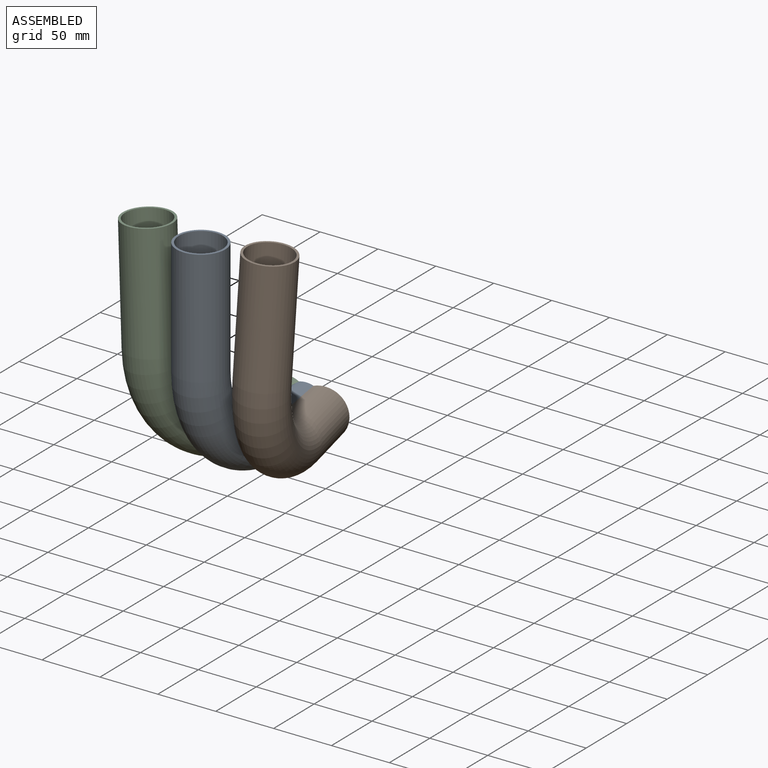
[diagram: assembled view]
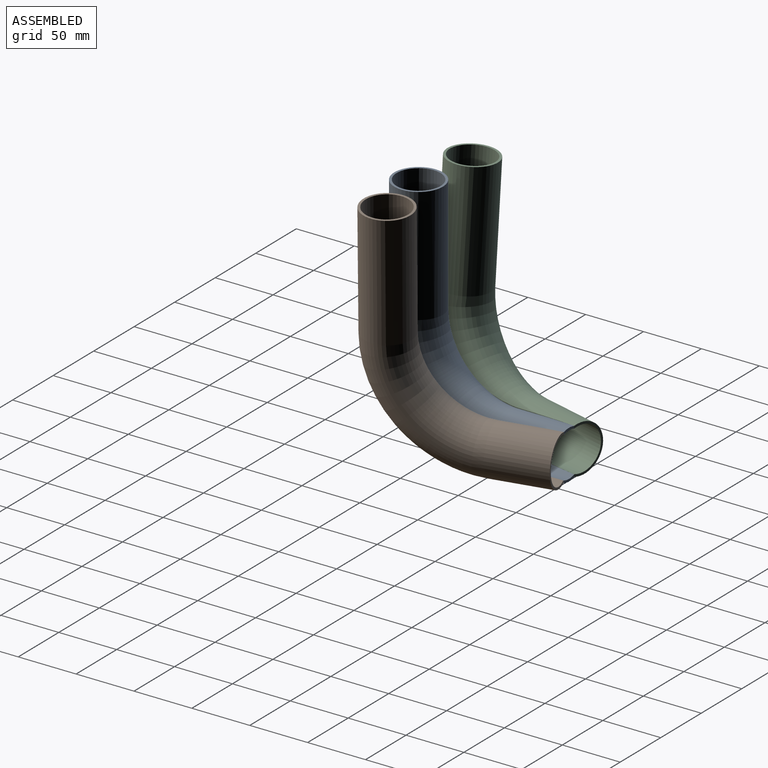
[diagram: assembled view, second angle]
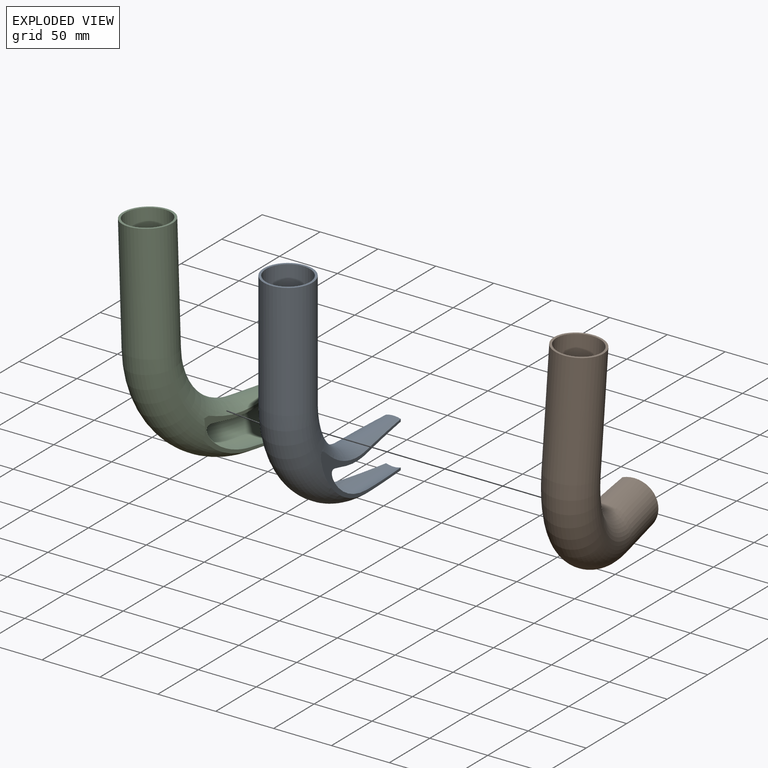
[diagram: exploded view]
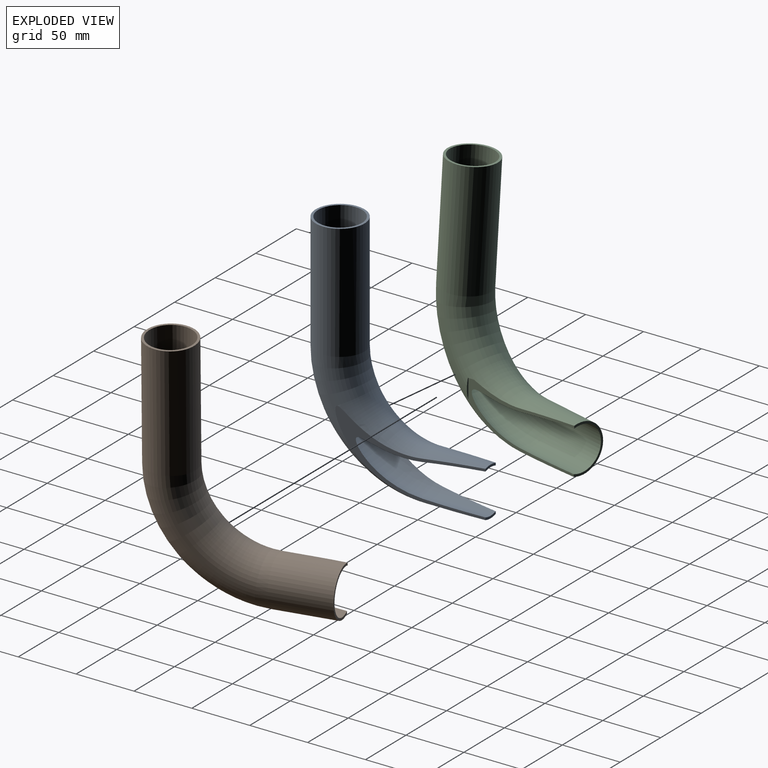
[diagram: exploded view, second angle]
ASSEMBLY  parts=3 mates=2
PART A: 13 faces, bbox 42x159.3x209.3 mm
  f0: cylinder r=19mm len=50mm, axis (0,-1,0), area 990mm2, adj f3,f4,f11,f12
  f1: cylinder r=21mm len=50mm, axis (0,-1,0), area 979.7mm2, adj f2,f5,f11,f12
  f2: plane 12.67x3.09mm, normal (0,1,0), area 25.8mm2, adj f1,f9,f11,f12
  f3: plane 12.67x3.09mm, normal (0,1,0), area 25.8mm2, adj f0,f10,f11,f12
  f4: torus R=80.02mm, axis (1,0,0), area 12575.9mm2, adj f0,f6,f9,f11,f12
  f5: torus R=80.02mm, axis (1,0,0), area 12550mm2, adj f1,f7,f10,f11,f12
  f6: cylinder r=19mm len=100mm, axis (0,0,-1), area 11938.1mm2, adj f4,f8
  f7: cylinder r=21mm len=100mm, axis (0,0,-1), area 13194.7mm2, adj f5,f8
  f8: plane 42x42mm, normal (0,0,1), area 251.3mm2, adj f6,f7
  f9: cylinder r=19mm len=50mm, axis (0,-1,0), area 990mm2, adj f2,f4,f11,f12
  f10: cylinder r=21mm len=50mm, axis (0,-1,0), area 979.7mm2, adj f3,f5,f11,f12
  f11: plane 119.45x63.32mm, normal (-0.99,0.12,0), area 976.7mm2, adj f0,f1,f2,f3,f4,f5,f9,f10
  f12: plane 119.45x63.32mm, normal (0.99,0.12,0), area 977mm2, adj f0,f1,f2,f3,f4,f5,f9,f10
PART B: 9 faces, bbox 42x159.3x209.3 mm
  f0: plane 42x28.37mm, normal (0,1,0), area 151.4mm2, adj f6,f7,f8
  f1: torus R=80.02mm, axis (1,0,0), area 13932mm2, adj f3,f6,f8
  f2: torus R=80.02mm, axis (1,0,0), area 14895.2mm2, adj f4,f7,f8
  f3: cylinder r=19mm len=100mm, axis (0,0,-1), area 11938.1mm2, adj f1,f5
  f4: cylinder r=21mm len=100mm, axis (0,0,-1), area 13194.7mm2, adj f2,f5
  f5: plane 42x42mm, normal (0,0,1), area 251.3mm2, adj f3,f4
  f6: cylinder r=19mm len=50mm, axis (0,-1,0), area 3974.6mm2, adj f0,f1,f8
  f7: cylinder r=21mm len=50mm, axis (0,-1,0), area 4278.4mm2, adj f0,f2,f8
  f8: plane 108.76x47.43mm, normal (-0.99,0.12,-0.05), area 787.5mm2, adj f0,f1,f2,f6,f7
PART C: 11 faces, bbox 42.1x159.4x209.4 mm
  f0: torus R=80.02mm, axis (1,0,0), area 13932mm2, adj f2,f4,f8
  f1: torus R=80.02mm, axis (1,0,0), area 15023.6mm2, adj f3,f5,f8,f9,f10
  f2: cylinder r=19mm len=50mm, axis (0,-1,0), area 3974.6mm2, adj f0,f7,f8
  f3: cylinder r=21mm len=50mm, axis (0,-1,0), area 4278.4mm2, adj f1,f7,f8
  f4: cylinder r=19mm len=100mm, axis (0,0,-1), area 11938.1mm2, adj f0,f6
  f5: cylinder r=21mm len=100mm, axis (0,0,-1), area 13194.7mm2, adj f1,f6
  f6: plane 42x42mm, normal (0,0,1), area 251.3mm2, adj f4,f5
  f7: plane 42x28.37mm, normal (0,1,0), area 151.4mm2, adj f2,f3,f8
  f8: plane 100.01x44.38mm, normal (0.99,0.12,-0.05), area 659.3mm2, adj f0,f1,f2,f3,f7,f9,f10
  f9: plane 17.63x2.04mm, normal (0,1,0), area 19.1mm2, adj f1,f8,f10
  f10: plane 5.46x1.25mm, normal (-0.05,0,-1), area 1.7mm2, adj f1,f8,f9
PLACE A t=(-6.33,6.39,21.3)mm fixed
PLACE B rot(axis=(-0.08,0.21,0.98),14.3deg) t=(22.21,11.19,21.8)mm
PLACE C rot(axis=(-0.08,-0.21,-0.98),14.3deg) t=(-34.88,11.19,21.8)mm
MATE fastened A.f12 <-> B.f8  axis (0.99,0.12,0) through (0,56.39,-38.7)mm
MATE fastened A.f11 <-> C.f8  axis (-0.99,0.12,0) through (-12.67,56.39,-38.7)mm
